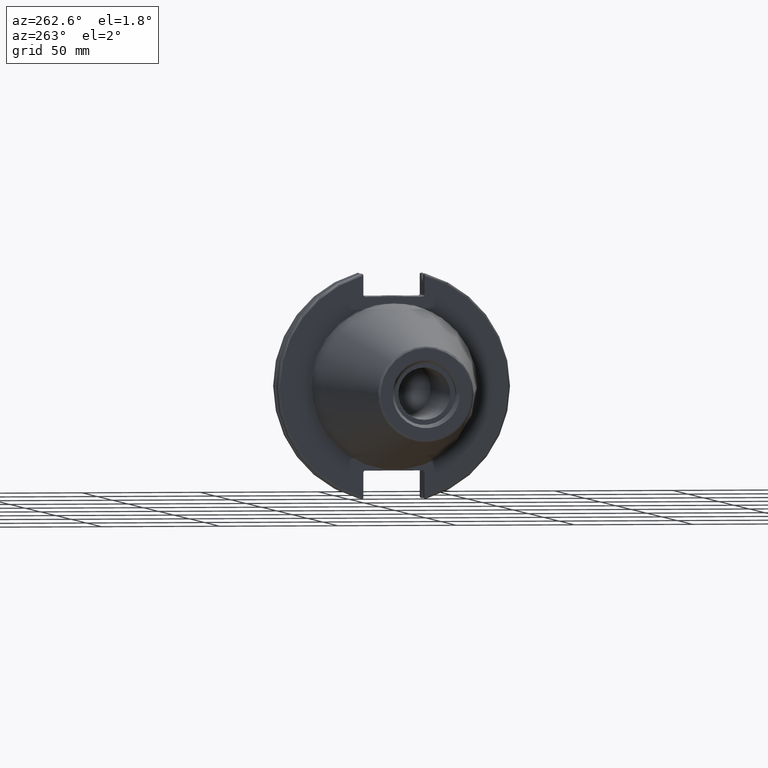
[diagram: clean part render]
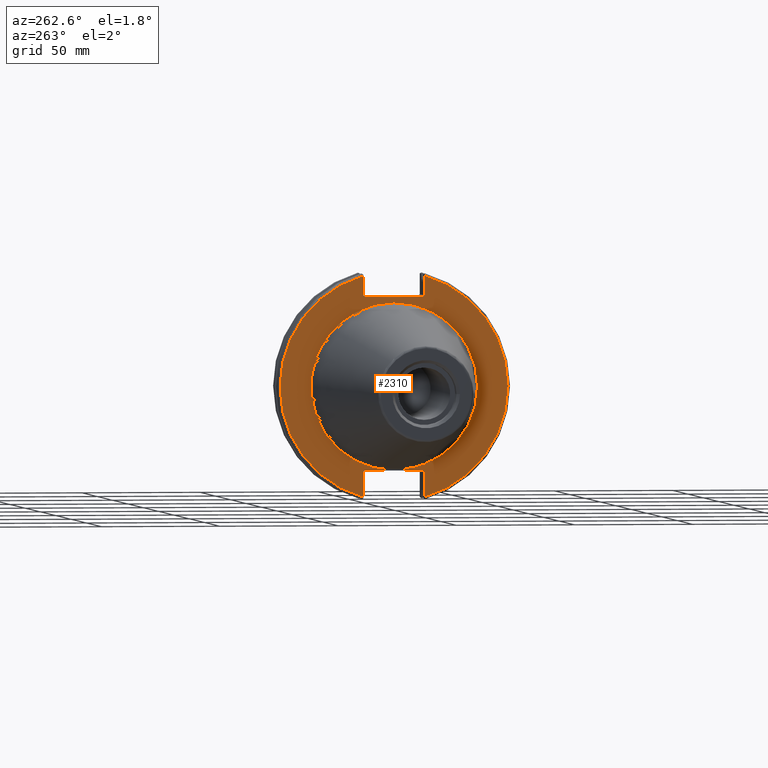
[diagram: same view with one face highlighted and labeled with its STEP entity id]
A machine part, auxiliary view. The second image highlights one B-rep face of the part: STEP entity #2310.
In plain terms, the highlighted planar face has unit normal (-1, 0, 0).
Its self-contained STEP definition (entity closure, byte-faithful):
#561=FACE_BOUND('',#872,.T.);
#591=CIRCLE('',#2638,35.125);
#593=CIRCLE('',#2641,48.2125);
#594=CIRCLE('',#2642,48.2125);
#754=FACE_OUTER_BOUND('',#871,.T.);
#871=EDGE_LOOP('',(#1760,#1761,#1762,#1763,#1764,#1765,#1766,#1767,#1768,
#1769,#1770,#1771));
#872=EDGE_LOOP('',(#1772));
#996=LINE('',#3798,#1128);
#997=LINE('',#3800,#1129);
#998=LINE('',#3802,#1130);
#999=LINE('',#3804,#1131);
#1000=LINE('',#3806,#1132);
#1001=LINE('',#3810,#1133);
#1002=LINE('',#3812,#1134);
#1003=LINE('',#3814,#1135);
#1004=LINE('',#3816,#1136);
#1005=LINE('',#3817,#1137);
#1128=VECTOR('',#3013,10.);
#1129=VECTOR('',#3014,10.);
#1130=VECTOR('',#3015,10.);
#1131=VECTOR('',#3016,10.);
#1132=VECTOR('',#3017,10.);
#1133=VECTOR('',#3020,10.);
#1134=VECTOR('',#3021,10.);
#1135=VECTOR('',#3022,10.);
#1136=VECTOR('',#3023,10.);
#1137=VECTOR('',#3024,10.);
#1267=VERTEX_POINT('',#3789);
#1268=VERTEX_POINT('',#3794);
#1269=VERTEX_POINT('',#3795);
#1270=VERTEX_POINT('',#3797);
#1271=VERTEX_POINT('',#3799);
#1272=VERTEX_POINT('',#3801);
#1273=VERTEX_POINT('',#3803);
#1274=VERTEX_POINT('',#3805);
#1275=VERTEX_POINT('',#3807);
#1276=VERTEX_POINT('',#3809);
#1277=VERTEX_POINT('',#3811);
#1278=VERTEX_POINT('',#3813);
#1279=VERTEX_POINT('',#3815);
#1457=EDGE_CURVE('',#1267,#1267,#591,.T.);
#1459=EDGE_CURVE('',#1268,#1269,#593,.T.);
#1460=EDGE_CURVE('',#1268,#1270,#996,.T.);
#1461=EDGE_CURVE('',#1271,#1270,#997,.T.);
#1462=EDGE_CURVE('',#1271,#1272,#998,.T.);
#1463=EDGE_CURVE('',#1273,#1272,#999,.T.);
#1464=EDGE_CURVE('',#1273,#1274,#1000,.T.);
#1465=EDGE_CURVE('',#1275,#1274,#594,.T.);
#1466=EDGE_CURVE('',#1275,#1276,#1001,.T.);
#1467=EDGE_CURVE('',#1277,#1276,#1002,.T.);
#1468=EDGE_CURVE('',#1277,#1278,#1003,.T.);
#1469=EDGE_CURVE('',#1279,#1278,#1004,.T.);
#1470=EDGE_CURVE('',#1279,#1269,#1005,.T.);
#1760=ORIENTED_EDGE('',*,*,#1459,.F.);
#1761=ORIENTED_EDGE('',*,*,#1460,.T.);
#1762=ORIENTED_EDGE('',*,*,#1461,.F.);
#1763=ORIENTED_EDGE('',*,*,#1462,.T.);
#1764=ORIENTED_EDGE('',*,*,#1463,.F.);
#1765=ORIENTED_EDGE('',*,*,#1464,.T.);
#1766=ORIENTED_EDGE('',*,*,#1465,.F.);
#1767=ORIENTED_EDGE('',*,*,#1466,.T.);
#1768=ORIENTED_EDGE('',*,*,#1467,.F.);
#1769=ORIENTED_EDGE('',*,*,#1468,.T.);
#1770=ORIENTED_EDGE('',*,*,#1469,.F.);
#1771=ORIENTED_EDGE('',*,*,#1470,.T.);
#1772=ORIENTED_EDGE('',*,*,#1457,.F.);
#2240=PLANE('',#2640);
#2310=ADVANCED_FACE('',(#754,#561),#2240,.T.);
#2638=AXIS2_PLACEMENT_3D('',#3791,#3005,#3006);
#2640=AXIS2_PLACEMENT_3D('',#3793,#3009,#3010);
#2641=AXIS2_PLACEMENT_3D('',#3796,#3011,#3012);
#2642=AXIS2_PLACEMENT_3D('',#3808,#3018,#3019);
#3005=DIRECTION('center_axis',(-1.,0.,0.));
#3006=DIRECTION('ref_axis',(0.,-1.,1.83697019872103E-16));
#3009=DIRECTION('center_axis',(-1.,0.,0.));
#3010=DIRECTION('ref_axis',(0.,0.,1.));
#3011=DIRECTION('center_axis',(1.,0.,0.));
#3012=DIRECTION('ref_axis',(0.,-1.,1.60812264967664E-16));
#3013=DIRECTION('',(0.,0.,-1.));
#3014=DIRECTION('',(0.,-0.707106781186549,0.707106781186546));
#3015=DIRECTION('',(0.,1.,0.));
#3016=DIRECTION('',(0.,-0.707106781186549,-0.707106781186546));
#3017=DIRECTION('',(0.,0.,1.));
#3018=DIRECTION('center_axis',(1.,0.,0.));
#3019=DIRECTION('ref_axis',(0.,1.,-6.12323399573677E-17));
#3020=DIRECTION('',(0.,0.,1.));
#3021=DIRECTION('',(0.,0.707106781186549,-0.707106781186546));
#3022=DIRECTION('',(0.,-1.,0.));
#3023=DIRECTION('',(0.,0.707106781186549,0.707106781186546));
#3024=DIRECTION('',(0.,0.,-1.));
#3789=CARTESIAN_POINT('',(3.175,-4.30157188200508E-15,35.125));
#3791=CARTESIAN_POINT('Origin',(3.175,0.,0.));
#3793=CARTESIAN_POINT('Origin',(3.175,49.2125,0.));
#3794=CARTESIAN_POINT('',(3.175,-12.95,46.4407434937254));
#3795=CARTESIAN_POINT('',(3.175,-12.95,-46.4407434937254));
#3796=CARTESIAN_POINT('Origin',(3.175,0.,0.));
#3797=CARTESIAN_POINT('',(3.175,-12.95,38.219));
#3798=CARTESIAN_POINT('',(3.175,-12.95,18.8595));
#3799=CARTESIAN_POINT('',(3.175,-12.45,37.719));
#3800=CARTESIAN_POINT('',(3.175,12.2703750000001,12.998625));
#3801=CARTESIAN_POINT('',(3.175,12.45,37.719));
#3802=CARTESIAN_POINT('',(3.175,24.60625,37.719));
#3803=CARTESIAN_POINT('',(3.175,12.95,38.219));
#3804=CARTESIAN_POINT('',(3.175,12.335875,37.604875));
#3805=CARTESIAN_POINT('',(3.175,12.95,46.4407434937254));
#3806=CARTESIAN_POINT('',(3.175,12.95,18.8595));
#3807=CARTESIAN_POINT('',(3.175,12.95,-46.4407434937254));
#3808=CARTESIAN_POINT('Origin',(3.175,0.,0.));
#3809=CARTESIAN_POINT('',(3.175,12.95,-35.806));
#3810=CARTESIAN_POINT('',(3.175,12.95,-17.653));
#3811=CARTESIAN_POINT('',(3.175,12.45,-35.306));
#3812=CARTESIAN_POINT('',(3.175,12.939125,-35.795125));
#3813=CARTESIAN_POINT('',(3.175,-12.45,-35.306));
#3814=CARTESIAN_POINT('',(3.175,24.60625,-35.306));
#3815=CARTESIAN_POINT('',(3.175,-12.95,-35.806));
#3816=CARTESIAN_POINT('',(3.175,11.6671250000001,-11.188875));
#3817=CARTESIAN_POINT('',(3.175,-12.95,-17.653));